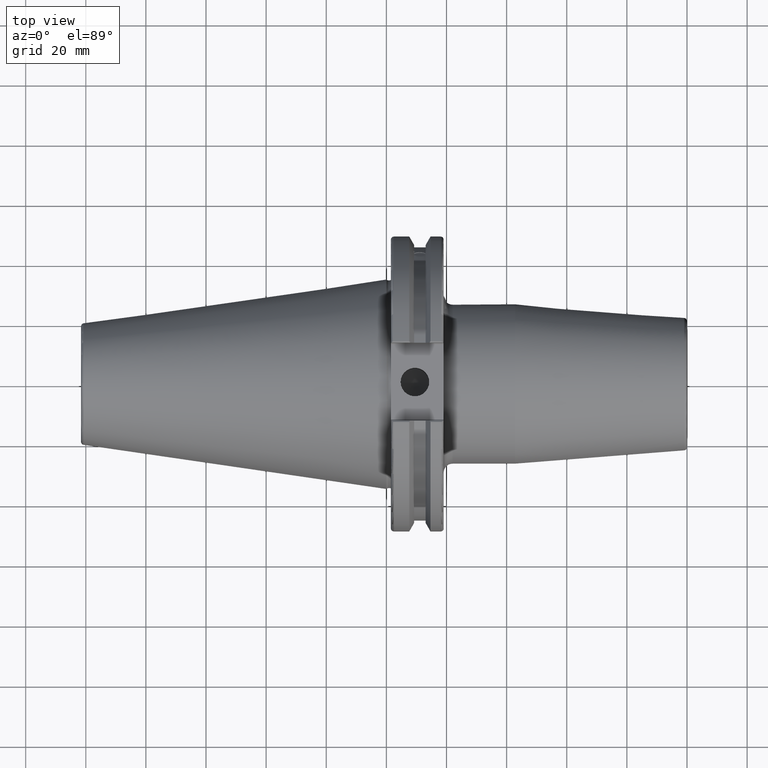
[diagram: clean part render]
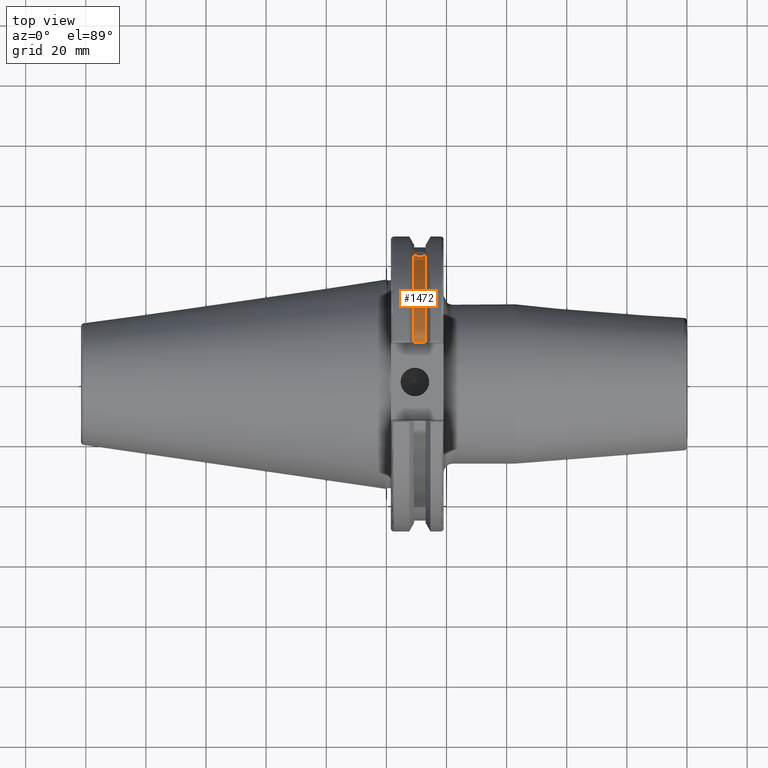
[diagram: same view with one face highlighted and labeled with its STEP entity id]
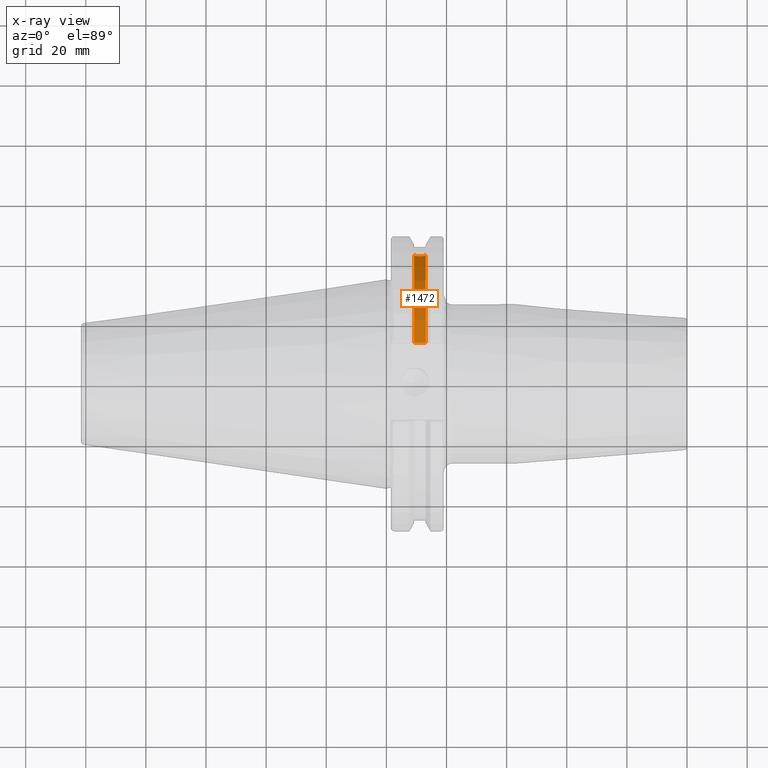
[diagram: x-ray of the same camera — body ghosted, the highlighted face saturated]
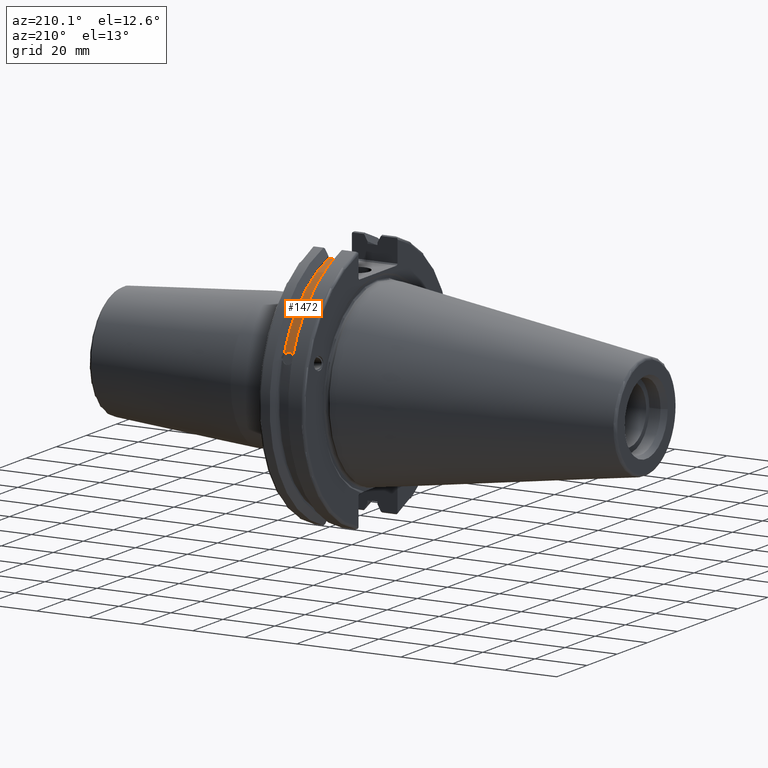
[diagram: same view with one face highlighted and labeled with its STEP entity id]
A machine part, top view. The second image highlights one B-rep face of the part: STEP entity #1472.
The next image is the same camera in x-ray: the body ghosted, the highlighted face saturated — about 0% of this face is hidden behind the body in this view.
A second angle (auxiliary view) of the same face is appended — the face is thin or edge-on in the first view.
In plain terms, the highlighted cylindrical surface (partial cylindrical patch) has radius 45.6435 mm, axis along (1, 0, 0).
Its self-contained STEP definition (entity closure, byte-faithful):
#41=B_SPLINE_CURVE_WITH_KNOTS('',3,(#2383,#2384,#2385,#2386,#2387,#2388,
#2389,#2390,#2391,#2392,#2393,#2394,#2395,#2396,#2397),.UNSPECIFIED.,.F.,
 .F.,(4,2,2,3,2,2,4),(-0.231381164054416,-0.158232381135623,-0.0791161905678115,
0.,0.0791161905678115,0.158232381135623,0.231381164054563),
 .UNSPECIFIED.);
#144=CYLINDRICAL_SURFACE('',#1649,45.6435);
#219=FACE_OUTER_BOUND('',#316,.T.);
#316=EDGE_LOOP('',(#1322,#1323,#1324,#1325));
#413=LINE('',#2720,#505);
#505=VECTOR('',#2003,10.);
#581=CIRCLE('',#1648,45.6435);
#582=CIRCLE('',#1650,45.6435);
#661=VERTEX_POINT('',#2380);
#662=VERTEX_POINT('',#2382);
#726=VERTEX_POINT('',#2717);
#727=VERTEX_POINT('',#2719);
#825=EDGE_CURVE('',#662,#661,#41,.T.);
#923=EDGE_CURVE('',#727,#726,#413,.T.);
#937=EDGE_CURVE('',#662,#726,#581,.T.);
#938=EDGE_CURVE('',#661,#727,#582,.T.);
#1322=ORIENTED_EDGE('',*,*,#825,.T.);
#1323=ORIENTED_EDGE('',*,*,#938,.T.);
#1324=ORIENTED_EDGE('',*,*,#923,.T.);
#1325=ORIENTED_EDGE('',*,*,#937,.F.);
#1472=ADVANCED_FACE('',(#219),#144,.T.);
#1648=AXIS2_PLACEMENT_3D('',#2751,#2042,#2043);
#1649=AXIS2_PLACEMENT_3D('',#2752,#2044,#2045);
#1650=AXIS2_PLACEMENT_3D('',#2753,#2046,#2047);
#2003=DIRECTION('',(1.,0.,0.));
#2042=DIRECTION('center_axis',(1.,0.,0.));
#2043=DIRECTION('ref_axis',(0.,0.,-1.));
#2044=DIRECTION('center_axis',(1.,0.,0.));
#2045=DIRECTION('ref_axis',(0.,1.,0.));
#2046=DIRECTION('center_axis',(1.,0.,0.));
#2047=DIRECTION('ref_axis',(0.,0.,-1.));
#2380=CARTESIAN_POINT('',(9.2191,42.5884454651059,16.4180816515115));
#2382=CARTESIAN_POINT('',(13.0491,42.5884454651059,16.4180816515115));
#2383=CARTESIAN_POINT('Ctrl Pts',(13.0491,42.5884454651059,16.4180816515115));
#2384=CARTESIAN_POINT('Ctrl Pts',(12.9428782240206,42.5035323832641,16.6383458840848));
#2385=CARTESIAN_POINT('Ctrl Pts',(12.791391924423,42.4245077186417,16.8380515255915));
#2386=CARTESIAN_POINT('Ctrl Pts',(12.4325949659982,42.2908173017388,17.1712159412199));
#2387=CARTESIAN_POINT('Ctrl Pts',(12.1964796719457,42.2294695309474,17.3208689126276));
#2388=CARTESIAN_POINT('Ctrl Pts',(11.6790940832128,42.1475978938586,17.5191491957165));
#2389=CARTESIAN_POINT('Ctrl Pts',(11.397820635226,42.1271980081205,17.5678194501937));
#2390=CARTESIAN_POINT('Ctrl Pts',(11.1341,42.1271980081205,17.5678194501937));
#2391=CARTESIAN_POINT('Ctrl Pts',(10.870379364774,42.1271980081205,17.5678194501937));
#2392=CARTESIAN_POINT('Ctrl Pts',(10.5891059167872,42.1475978938586,17.5191491957165));
#2393=CARTESIAN_POINT('Ctrl Pts',(10.0717203280543,42.2294695309474,17.3208689126276));
#2394=CARTESIAN_POINT('Ctrl Pts',(9.83560503400179,42.2908173017388,17.1712159412199));
#2395=CARTESIAN_POINT('Ctrl Pts',(9.47680807557666,42.4245077186418,16.8380515255912));
#2396=CARTESIAN_POINT('Ctrl Pts',(9.32532177598177,42.5035323832622,16.6383458840897));
#2397=CARTESIAN_POINT('Ctrl Pts',(9.2191,42.5884454651059,16.4180816515115));
#2717=CARTESIAN_POINT('',(13.0491,12.95,43.7678716897452));
#2719=CARTESIAN_POINT('',(9.2191,12.95,43.7678716897452));
#2720=CARTESIAN_POINT('',(11.1341,12.95,43.7678716897452));
#2751=CARTESIAN_POINT('Origin',(13.0491,0.,0.));
#2752=CARTESIAN_POINT('Origin',(11.1341,0.,0.));
#2753=CARTESIAN_POINT('Origin',(9.2191,0.,0.));